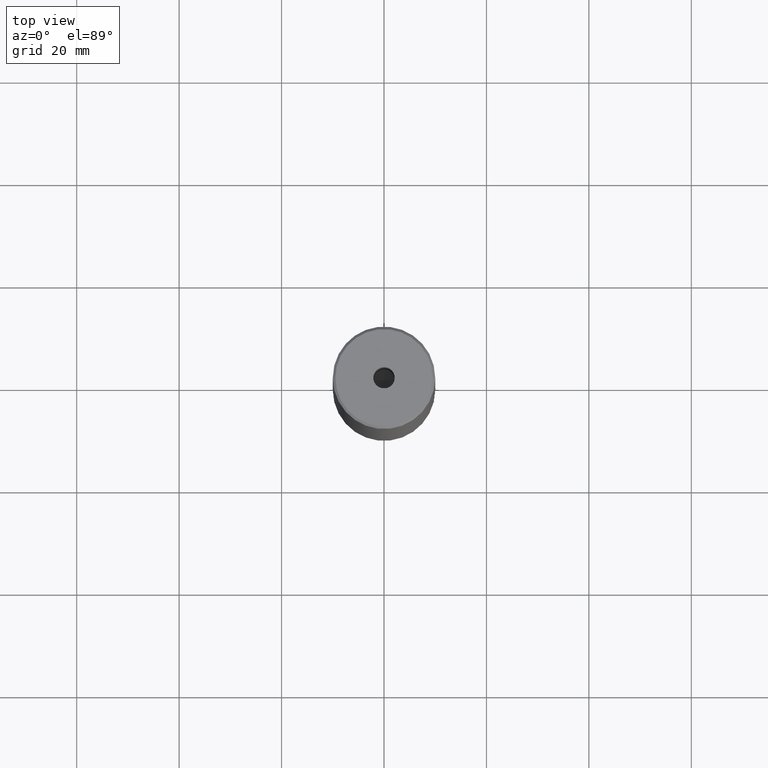
[diagram: clean part render]
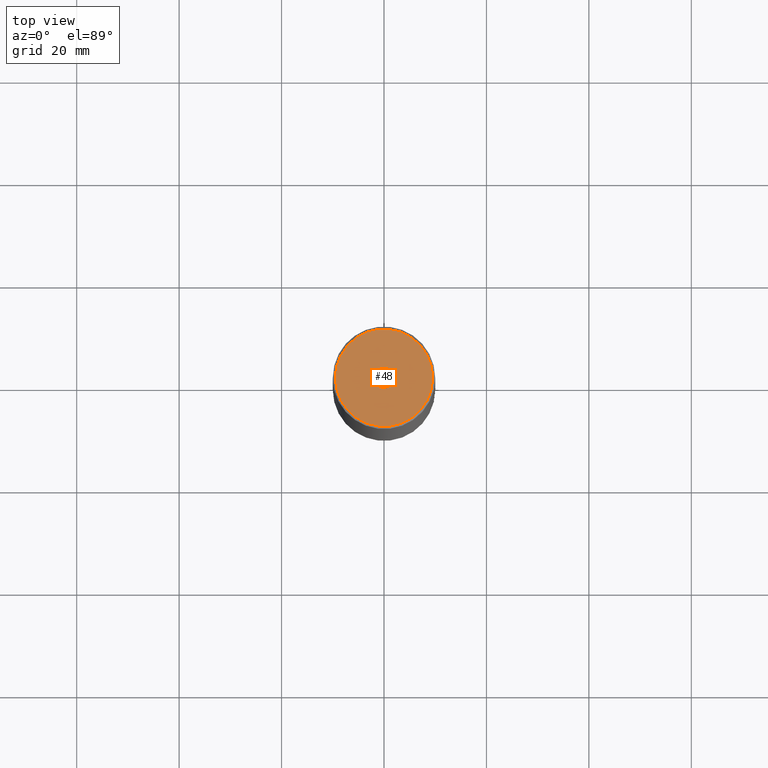
[diagram: same view with one face highlighted and labeled with its STEP entity id]
A machine part, top view. The second image highlights one B-rep face of the part: STEP entity #48.
In plain terms, the highlighted planar face has unit normal (0, -0, 1).
Its self-contained STEP definition (entity closure, byte-faithful):
#20 = CARTESIAN_POINT ( 'NONE',  ( -2.099999999999998757, 2.571758278209440478E-16, -1.990051048614449116E-16 ) ) ;
#48 = ADVANCED_FACE ( 'NONE', ( #129, #81 ), #263, .T. ) ;
#67 = ORIENTED_EDGE ( 'NONE', *, *, #519, .T. ) ;
#68 = EDGE_LOOP ( 'NONE', ( #295, #153 ) ) ;
#81 = FACE_OUTER_BOUND ( 'NONE', #157, .T. ) ;
#96 = DIRECTION ( 'NONE',  ( -0.000000000000000000, -0.000000000000000000, 1.000000000000000000 ) ) ;
#103 = VERTEX_POINT ( 'NONE', #255 ) ;
#110 = VERTEX_POINT ( 'NONE', #20 ) ;
#129 = FACE_BOUND ( 'NONE', #68, .T. ) ;
#142 = DIRECTION ( 'NONE',  ( -0.000000000000000000, -0.000000000000000000, 1.000000000000000000 ) ) ;
#152 = EDGE_CURVE ( 'NONE', #103, #110, #224, .T. ) ;
#153 = ORIENTED_EDGE ( 'NONE', *, *, #447, .F. ) ;
#157 = EDGE_LOOP ( 'NONE', ( #286, #67 ) ) ;
#160 = DIRECTION ( 'NONE',  ( 1.000000000000000000, 0.000000000000000000, 0.000000000000000000 ) ) ;
#171 = DIRECTION ( 'NONE',  ( -0.000000000000000000, -0.000000000000000000, 1.000000000000000000 ) ) ;
#181 = DIRECTION ( 'NONE',  ( -0.000000000000000000, -0.000000000000000000, 1.000000000000000000 ) ) ;
#184 = DIRECTION ( 'NONE',  ( 1.000000000000000000, 0.000000000000000000, 0.000000000000000000 ) ) ;
#190 = AXIS2_PLACEMENT_3D ( 'NONE', #581, #181, #360 ) ;
#191 = CARTESIAN_POINT ( 'NONE',  ( -9.500000000000008882, 0.000000000000000000, 0.000000000000000000 ) ) ;
#197 = CIRCLE ( 'NONE', #190, 9.500000000000008882 ) ;
#224 = CIRCLE ( 'NONE', #268, 2.099999999999998757 ) ;
#255 = CARTESIAN_POINT ( 'NONE',  ( 2.099999999999998757, 0.000000000000000000, -1.990051048614449116E-16 ) ) ;
#263 = PLANE ( 'NONE',  #573 ) ;
#268 = AXIS2_PLACEMENT_3D ( 'NONE', #514, #142, #456 ) ;
#282 = CARTESIAN_POINT ( 'NONE',  ( 0.000000000000000000, 0.000000000000000000, 0.000000000000000000 ) ) ;
#286 = ORIENTED_EDGE ( 'NONE', *, *, #359, .T. ) ;
#295 = ORIENTED_EDGE ( 'NONE', *, *, #152, .F. ) ;
#326 = DIRECTION ( 'NONE',  ( 1.000000000000000000, 0.000000000000000000, 0.000000000000000000 ) ) ;
#357 = CIRCLE ( 'NONE', #502, 9.500000000000008882 ) ;
#359 = EDGE_CURVE ( 'NONE', #517, #382, #357, .T. ) ;
#360 = DIRECTION ( 'NONE',  ( 1.000000000000000000, 0.000000000000000000, 0.000000000000000000 ) ) ;
#382 = VERTEX_POINT ( 'NONE', #516 ) ;
#406 = CIRCLE ( 'NONE', #535, 2.099999999999998757 ) ;
#412 = CARTESIAN_POINT ( 'NONE',  ( 0.000000000000000000, 0.000000000000000000, -1.990051048614449116E-16 ) ) ;
#447 = EDGE_CURVE ( 'NONE', #110, #103, #406, .T. ) ;
#456 = DIRECTION ( 'NONE',  ( 1.000000000000000000, 0.000000000000000000, 0.000000000000000000 ) ) ;
#471 = DIRECTION ( 'NONE',  ( 0.000000000000000000, -0.000000000000000000, 1.000000000000000000 ) ) ;
#502 = AXIS2_PLACEMENT_3D ( 'NONE', #568, #171, #160 ) ;
#514 = CARTESIAN_POINT ( 'NONE',  ( 0.000000000000000000, 0.000000000000000000, -1.990051048614449116E-16 ) ) ;
#516 = CARTESIAN_POINT ( 'NONE',  ( 9.500000000000008882, 1.194030629168669864E-15, 0.000000000000000000 ) ) ;
#517 = VERTEX_POINT ( 'NONE', #191 ) ;
#519 = EDGE_CURVE ( 'NONE', #382, #517, #197, .T. ) ;
#535 = AXIS2_PLACEMENT_3D ( 'NONE', #412, #96, #184 ) ;
#568 = CARTESIAN_POINT ( 'NONE',  ( 0.000000000000000000, 0.000000000000000000, 0.000000000000000000 ) ) ;
#573 = AXIS2_PLACEMENT_3D ( 'NONE', #282, #471, #326 ) ;
#581 = CARTESIAN_POINT ( 'NONE',  ( 0.000000000000000000, 0.000000000000000000, 0.000000000000000000 ) ) ;